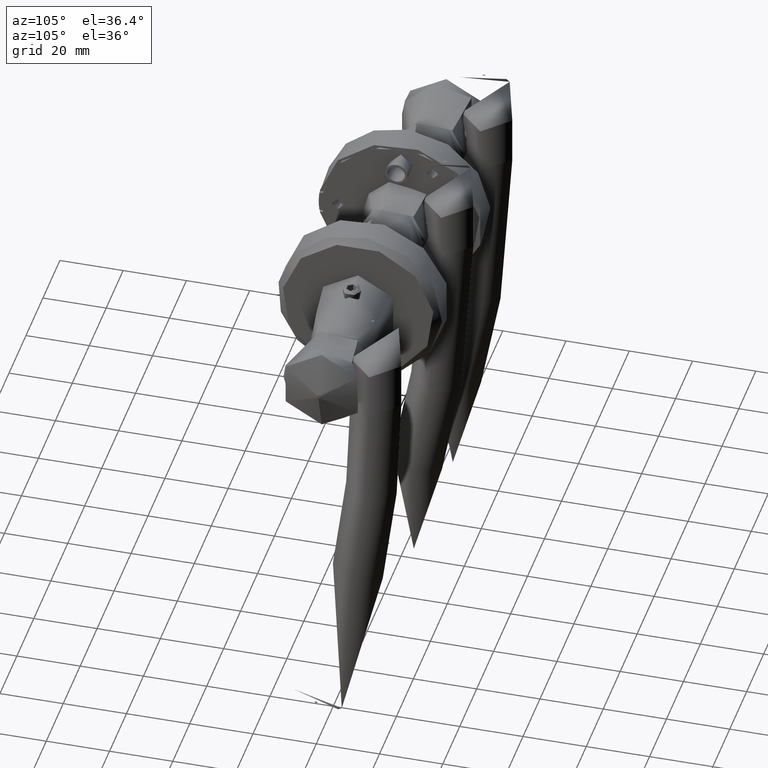
[diagram: clean part render]
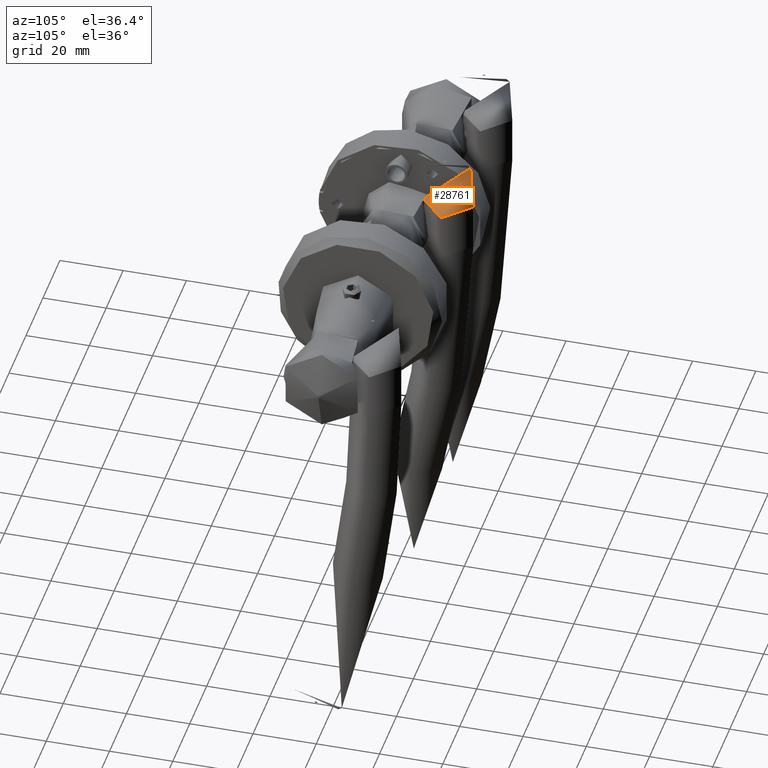
[diagram: same view with one face highlighted and labeled with its STEP entity id]
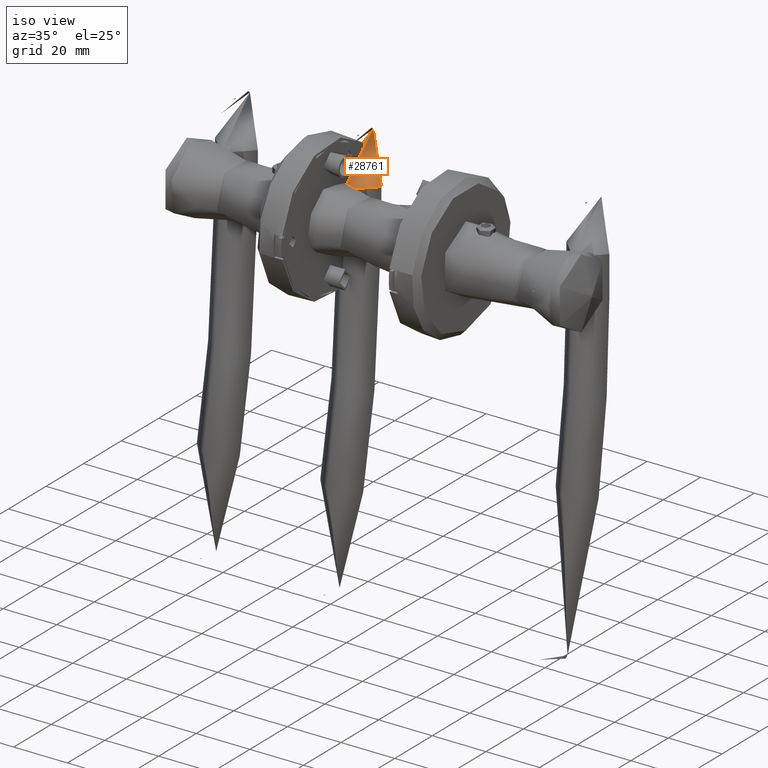
[diagram: same view with one face highlighted and labeled with its STEP entity id]
A machine part, auxiliary view. The second image highlights one B-rep face of the part: STEP entity #28761.
A second angle (iso view) of the same face is appended — the face is thin or edge-on in the first view.
In plain terms, the highlighted toroidal blend (fillet) surface has major radius 120.625 mm and minor (blend) radius 8 mm.
Its self-contained STEP definition (entity closure, byte-faithful):
#68 = CARTESIAN_POINT ( 'NONE',  ( 11.34097155490724000, 14.74866180691307700, 43.00015980380141700 ) ) ;
#227 = CARTESIAN_POINT ( 'NONE',  ( 10.35507750714612400, 6.545564709450022000, 32.91982958815197700 ) ) ;
#386 = CARTESIAN_POINT ( 'NONE',  ( 12.23488823043436800, 22.17612538287280100, 35.00000000303258200 ) ) ;
#830 = CARTESIAN_POINT ( 'NONE',  ( 11.03178636149572400, 12.17742678843429100, 27.26815750425095400 ) ) ;
#1306 = CARTESIAN_POINT ( 'NONE',  ( 11.58572164925278400, 16.78317904769878400, 27.41889203836914700 ) ) ;
#2322 = CARTESIAN_POINT ( 'NONE',  ( 10.64774774808760300, 8.982043568544627400, 28.97503493273515900 ) ) ;
#3270 = CARTESIAN_POINT ( 'NONE',  ( -2.300000000000003400, 15.00000000000000500, 35.00000000000000000 ) ) ;
#3451 = CARTESIAN_POINT ( 'NONE',  ( 10.94236343148856100, 11.43353413520640200, 42.49109058934852400 ) ) ;
#3612 = CARTESIAN_POINT ( 'NONE',  ( 12.14991586763716600, 21.47048941736210300, 38.30683501097937700 ) ) ;
#3764 = CARTESIAN_POINT ( 'NONE',  ( 10.33049986111687500, 6.340903240789008200, 33.95471631628286200 ) ) ;
#4536 = CARTESIAN_POINT ( 'NONE',  ( 10.97189661829528800, 11.67923955147809200, 27.42030757734748600 ) ) ;
#4864 = CARTESIAN_POINT ( 'NONE',  ( 12.16311132547732900, 21.58007491178538100, 31.92620313888334800 ) ) ;
#5025 = CARTESIAN_POINT ( 'NONE',  ( 11.15348878987034800, 13.18968702247637400, 27.05225688891514600 ) ) ;
#7191 = CARTESIAN_POINT ( 'NONE',  ( 11.58628214560055300, 16.78785140707236000, 42.59304779169826800 ) ) ;
#7347 = CARTESIAN_POINT ( 'NONE',  ( 11.67303874901926400, 17.50884739688476400, 42.29276000729363000 ) ) ;
#7673 = CARTESIAN_POINT ( 'NONE',  ( 10.56021595692051900, 8.253465711370081300, 40.29144630868997700 ) ) ;
#7824 = CARTESIAN_POINT ( 'NONE',  ( 12.23488834946103400, 22.17612536913426200, 35.52835077412935800 ) ) ;
#8592 = CARTESIAN_POINT ( 'NONE',  ( 11.99850233164210200, 20.21291489043589000, 29.70853865059966700 ) ) ;
#8922 = CARTESIAN_POINT ( 'NONE',  ( 11.40373089578063000, 15.27041352650741000, 27.05138684350102100 ) ) ;
#10414 = DIRECTION ( 'NONE',  ( 1.000000000000000000, -1.387778780781445400E-016, 0.0000000000000000000 ) ) ;
#10446 = AXIS2_PLACEMENT_3D ( 'NONE', #3270, #10414, #29176 ) ;
#10634 = CARTESIAN_POINT ( 'NONE',  ( 10.46801152434626500, 7.485877737755799000, 30.77076893405042700 ) ) ;
#10914 = CARTESIAN_POINT ( 'NONE',  ( 10.37467496840628200, 6.708751351137934200, 37.57600219868719900 ) ) ;
#11024 = EDGE_CURVE ( 'NONE', #36880, #36880, #16367, .T. ) ;
#11174 = DIRECTION ( 'NONE',  ( -1.000000000000000000, 0.0000000000000000000, 0.0000000000000000000 ) ) ;
#11240 = CARTESIAN_POINT ( 'NONE',  ( 10.77458313862075400, 10.03758050094805700, 41.79793222632076100 ) ) ;
#11395 = CARTESIAN_POINT ( 'NONE',  ( 11.40423642958362100, 15.27462812086775700, 42.94816268925058000 ) ) ;
#11433 = CARTESIAN_POINT ( 'NONE',  ( 10.80049617565017600, 10.25320387088571100, 28.05711138968326400 ) ) ;
#13680 = TOROIDAL_SURFACE ( 'NONE', #28097, 120.6250000000000900, 8.000000000000001800 ) ;
#14389 = DIRECTION ( 'NONE',  ( -0.0000000000000000000, -0.0000000000000000000, -1.000000000000000000 ) ) ;
#14636 = CARTESIAN_POINT ( 'NONE',  ( 11.75703775071949900, 18.20685651544250300, 41.93193416863290700 ) ) ;
#14786 = CARTESIAN_POINT ( 'NONE',  ( 11.86149371876096800, 19.07475469798454200, 41.36343098022754800 ) ) ;
#14951 = CARTESIAN_POINT ( 'NONE',  ( 11.52673312451904900, 16.29290789913545400, 42.74403259648347100 ) ) ;
#15277 = CARTESIAN_POINT ( 'NONE',  ( 10.88492816162119500, 10.95573888865527800, 42.29184048232231400 ) ) ;
#15564 = CARTESIAN_POINT ( 'NONE',  ( 12.22869079042557900, 22.12466232134615400, 33.94933159272490300 ) ) ;
#15719 = CARTESIAN_POINT ( 'NONE',  ( 11.83513570854777600, 18.85575575976431000, 28.48903954080177700 ) ) ;
#15883 = CARTESIAN_POINT ( 'NONE',  ( 12.23488823043436800, 22.17612538287280100, 35.00000000303258200 ) ) ;
#16037 = CARTESIAN_POINT ( 'NONE',  ( 11.86053130776880100, 19.06674580296523300, 28.64629416229720600 ) ) ;
#16208 = CARTESIAN_POINT ( 'NONE',  ( 11.06200911853813900, 12.42880867840302800, 27.20481660787211100 ) ) ;
#16270 = CARTESIAN_POINT ( 'NONE',  ( 10.69686380035145700, 9.390841287049910900, 28.63713898471181100 ) ) ;
#16367 = B_SPLINE_CURVE_WITH_KNOTS ( 'NONE', 3,
 ( #15883, #19933, #15564, #41701, #27013, #27352, #4864, #45722, #38300, #23303, #30746, #8592, #34431, #34594, #16037, #15719, #19771, #31060, #45561, #1306, #34764, #30909, #8922, #41390, #27174, #5025, #16208, #830, #4536, #34124, #40874, #11433, #16270, #2322, #25121, #24531, #10634, #45939, #39651, #47701, #25777, #227, #3764, #22387, #44335, #25942, #33050, #22068, #10914, #25632, #47860, #44809, #40771, #7673, #19007, #40628, #11240, #18531, #41097, #15277, #3451, #18704, #18374, #37057, #29345, #22226, #68, #11395, #14951, #7191, #7347, #33216, #14636, #44178, #14786, #36750, #33686, #40460, #44497, #29676, #37376, #3612, #26102, #29508, #33524, #7824, #386 ),
 .UNSPECIFIED., .T., .F.,
 ( 4, 2, 2, 1, 2, 2, 2, 2, 2, 2, 2, 2, 2, 2, 2, 2, 2, 2, 2, 2, 2, 2, 2, 2, 2, 2, 2, 2, 2, 2, 2, 2, 2, 2, 2, 2, 2, 2, 2, 2, 2, 2, 2, 4 ),
 ( 0.0000000000000000000, 0.001574423869726880900, 0.002361635804590321400, 0.003148847739453761900, 0.003936059674317183300, 0.004723271609180594200, 0.006297695478907411800, 0.007084907413770826300, 0.007872119348634238100, 0.009446543218361068800, 0.01023375515322448100, 0.01102096708808789200, 0.01259539095781470900, 0.01416981482754152600, 0.01495702676240493300, 0.01574423869726834100, 0.01731866256699515100, 0.01889308643672196100, 0.02046751030644877000, 0.02125472224131218200, 0.02204193417617560100, 0.02361635804590243500, 0.02519078191562927300, 0.02676520578535611000, 0.02755241772021952600, 0.02833962965508294400, 0.02991405352480980600, 0.03148847739453666100, 0.03306290126426351900, 0.03385011319912695200, 0.03463732513399037800, 0.03542453706885381100, 0.03621174900371724300, 0.03778617287344410200, 0.03936059674317096700, 0.04093502061289782500, 0.04172223254776125800, 0.04250944448262468400, 0.04408386835235153500, 0.04565829222207838700, 0.04644550415694181900, 0.04723271609180524500, 0.04880713996153210300, 0.05038156383125894800 ),
 .UNSPECIFIED. ) ;
#16663 = VERTEX_POINT ( 'NONE', #25024 ) ;
#16665 = CARTESIAN_POINT ( 'NONE',  ( 12.23488823043436600, 22.17612538287279700, 35.00000000303258200 ) ) ;
#18374 = CARTESIAN_POINT ( 'NONE',  ( 11.03141325639517100, 12.17432384746136400, 42.73098638907811900 ) ) ;
#18531 = CARTESIAN_POINT ( 'NONE',  ( 10.80169153005196700, 10.26315312782089800, 41.93395557789180100 ) ) ;
#18704 = CARTESIAN_POINT ( 'NONE',  ( 10.97165451995580600, 11.67722495071434900, 42.57898464688862100 ) ) ;
#18902 = FACE_OUTER_BOUND ( 'NONE', #43119, .T. ) ;
#19007 = CARTESIAN_POINT ( 'NONE',  ( 10.64827432832121300, 8.986427654871505400, 41.02880662758187900 ) ) ;
#19771 = CARTESIAN_POINT ( 'NONE',  ( 11.75712772051206300, 18.20761466023779500, 28.05376268679505700 ) ) ;
#19933 = CARTESIAN_POINT ( 'NONE',  ( 12.23488811140770400, 22.17612539661134400, 34.47164923193580700 ) ) ;
#22068 = CARTESIAN_POINT ( 'NONE',  ( 10.35648205309857400, 6.557256388672987800, 37.07361271822107800 ) ) ;
#22226 = CARTESIAN_POINT ( 'NONE',  ( 11.21641490337966800, 13.71297316447809700, 42.99983944163112400 ) ) ;
#22387 = CARTESIAN_POINT ( 'NONE',  ( 10.32436518517763300, 6.289818724942007200, 34.47779301679231900 ) ) ;
#23303 = CARTESIAN_POINT ( 'NONE',  ( 12.09066791629707900, 20.97843071477837600, 30.76736072877164200 ) ) ;
#24531 = CARTESIAN_POINT ( 'NONE',  ( 10.52023690167293800, 7.920650970345775500, 30.11604440324243400 ) ) ;
#25024 = CARTESIAN_POINT ( 'NONE',  ( -2.300000000000002000, 23.00000000000000700, 35.00000000000000000 ) ) ;
#25121 = CARTESIAN_POINT ( 'NONE',  ( 10.55969575148334400, 8.249136821283752100, 29.71348419304075300 ) ) ;
#25632 = CARTESIAN_POINT ( 'NONE',  ( 10.38534884269053300, 6.797625578407548600, 37.82564035973143700 ) ) ;
#25777 = CARTESIAN_POINT ( 'NONE',  ( 10.37332156242151800, 6.697481868144761200, 32.41813286223314300 ) ) ;
#25942 = CARTESIAN_POINT ( 'NONE',  ( 10.33068379453798100, 6.342440939347373100, 36.05374227979581300 ) ) ;
#26102 = CARTESIAN_POINT ( 'NONE',  ( 12.18595026157246900, 21.76974268785795300, 37.58003335377342300 ) ) ;
#27013 = CARTESIAN_POINT ( 'NONE',  ( 12.20246110047686700, 21.90685031725941600, 32.91806703503186100 ) ) ;
#27174 = CARTESIAN_POINT ( 'NONE',  ( 11.21575903716816600, 13.70752126669300900, 27.00013587440218300 ) ) ;
#27352 = CARTESIAN_POINT ( 'NONE',  ( 12.18420582076870100, 21.75525328034552800, 32.41710816199086100 ) ) ;
#28097 = AXIS2_PLACEMENT_3D ( 'NONE', #33297, #14389, #11174 ) ;
#28701 = ORIENTED_EDGE ( 'NONE', *, *, #43985, .T. ) ;
#28761 = ADVANCED_FACE ( 'NONE', ( #18902, #43153 ), #13680, .T. ) ;
#29176 = DIRECTION ( 'NONE',  ( 1.626303258728256400E-016, 1.000000000000000000, 0.0000000000000000000 ) ) ;
#29345 = CARTESIAN_POINT ( 'NONE',  ( 11.15446445510725400, 13.19778946939111100, 42.94916719302905500 ) ) ;
#29508 = CARTESIAN_POINT ( 'NONE',  ( 12.20405488387731900, 21.92006274329342500, 37.08155867771390000 ) ) ;
#29676 = CARTESIAN_POINT ( 'NONE',  ( 12.10672178271371800, 21.11176299691095800, 39.00899057885904100 ) ) ;
#30746 = CARTESIAN_POINT ( 'NONE',  ( 12.03813002740843500, 20.54206721816729000, 30.11105827855330100 ) ) ;
#30909 = CARTESIAN_POINT ( 'NONE',  ( 11.49532437245010500, 16.03182171107547300, 27.20343472290258900 ) ) ;
#31060 = CARTESIAN_POINT ( 'NONE',  ( 11.70222763201615200, 17.75142351456002000, 27.80846743741533400 ) ) ;
#32432 = CIRCLE ( 'NONE', #10446, 8.000000000000001800 ) ;
#33050 = CARTESIAN_POINT ( 'NONE',  ( 10.34891293141054400, 6.494228439813033700, 36.82024096930540200 ) ) ;
#33216 = CARTESIAN_POINT ( 'NONE',  ( 11.70167703641510600, 17.74683270197210700, 42.17953309110205900 ) ) ;
#33297 = CARTESIAN_POINT ( 'NONE',  ( -2.300000000000012300, -105.6250000000000900, 35.00000000000000000 ) ) ;
#33524 = CARTESIAN_POINT ( 'NONE',  ( 12.22855380075913700, 22.12354764115859500, 36.05707089447092500 ) ) ;
#33686 = CARTESIAN_POINT ( 'NONE',  ( 11.99904514636772700, 20.21742444450133300, 40.28692242308581200 ) ) ;
#34124 = CARTESIAN_POINT ( 'NONE',  ( 10.94209170200531400, 11.43129302155800900, 27.50968999996811700 ) ) ;
#34431 = CARTESIAN_POINT ( 'NONE',  ( 11.93236098705179200, 19.66348135170693100, 29.15576193584230300 ) ) ;
#34594 = CARTESIAN_POINT ( 'NONE',  ( 11.90918914605446100, 19.47098556012940300, 28.98006492740050500 ) ) ;
#34764 = CARTESIAN_POINT ( 'NONE',  ( 11.52561980765692300, 16.28363471741327100, 27.26666942451128900 ) ) ;
#36226 = ORIENTED_EDGE ( 'NONE', *, *, #11024, .T. ) ;
#36750 = CARTESIAN_POINT ( 'NONE',  ( 11.90977457178881900, 19.47585648243979200, 41.03300652000471200 ) ) ;
#36880 = VERTEX_POINT ( 'NONE', #16665 ) ;
#37057 = CARTESIAN_POINT ( 'NONE',  ( 11.06204487648787400, 12.42911256849371600, 42.79534372189135600 ) ) ;
#37376 = CARTESIAN_POINT ( 'NONE',  ( 12.13633782266778700, 21.35772559537634800, 38.54655445458583100 ) ) ;
#38300 = CARTESIAN_POINT ( 'NONE',  ( 12.10692302445084700, 21.11343354519985700, 30.99397071929600500 ) ) ;
#39116 = EDGE_LOOP ( 'NONE', ( #28701 ) ) ;
#39651 = CARTESIAN_POINT ( 'NONE',  ( 10.42229280382448000, 7.105232398592924000, 31.46043157837997100 ) ) ;
#40460 = CARTESIAN_POINT ( 'NONE',  ( 12.03869085384918400, 20.54673921882650600, 39.88221827902768300 ) ) ;
#40628 = CARTESIAN_POINT ( 'NONE',  ( 10.69632503358591600, 9.386340990090088700, 41.35968828809772900 ) ) ;
#40771 = CARTESIAN_POINT ( 'NONE',  ( 10.51989759549350400, 7.917868947265809300, 39.88004340669467500 ) ) ;
#40874 = CARTESIAN_POINT ( 'NONE',  ( 10.85530629263884400, 10.70927825693759900, 27.81125037176389400 ) ) ;
#41097 = CARTESIAN_POINT ( 'NONE',  ( 10.85679314502793200, 10.72163333531502100, 42.18048448274611700 ) ) ;
#41390 = CARTESIAN_POINT ( 'NONE',  ( 11.34172295450405200, 14.75490823241172800, 26.99986465441200800 ) ) ;
#41701 = CARTESIAN_POINT ( 'NONE',  ( 12.21019345810970900, 21.97106143832832400, 33.17481241687153900 ) ) ;
#43119 = EDGE_LOOP ( 'NONE', ( #36226 ) ) ;
#43153 = FACE_OUTER_BOUND ( 'NONE', #39116, .T. ) ;
#43985 = EDGE_CURVE ( 'NONE', #16663, #16663, #32432, .T. ) ;
#44178 = CARTESIAN_POINT ( 'NONE',  ( 11.78381394791638400, 18.42934146024266400, 41.79755424718359800 ) ) ;
#44335 = CARTESIAN_POINT ( 'NONE',  ( 10.32446076628629900, 6.290611165696005500, 35.53429458009193800 ) ) ;
#44497 = CARTESIAN_POINT ( 'NONE',  ( 12.09064642602803200, 20.97824558594555100, 39.23276489500545200 ) ) ;
#44809 = CARTESIAN_POINT ( 'NONE',  ( 10.45062805824008500, 7.341117418392347100, 39.01095816653393200 ) ) ;
#45561 = CARTESIAN_POINT ( 'NONE',  ( 11.61552504084188800, 17.03087617656017400, 27.50807199859579600 ) ) ;
#45722 = CARTESIAN_POINT ( 'NONE',  ( 12.13643078702508000, 21.35849841500868300, 31.45507984069551100 ) ) ;
#45939 = CARTESIAN_POINT ( 'NONE',  ( 10.45175105453657400, 7.350496230531218700, 30.99821110345934000 ) ) ;
#47701 = CARTESIAN_POINT ( 'NONE',  ( 10.40899568643198100, 6.994518507980706600, 31.69633055334456600 ) ) ;
#47860 = CARTESIAN_POINT ( 'NONE',  ( 10.42129930177628500, 7.096963398928465100, 38.55175366152403200 ) ) ;